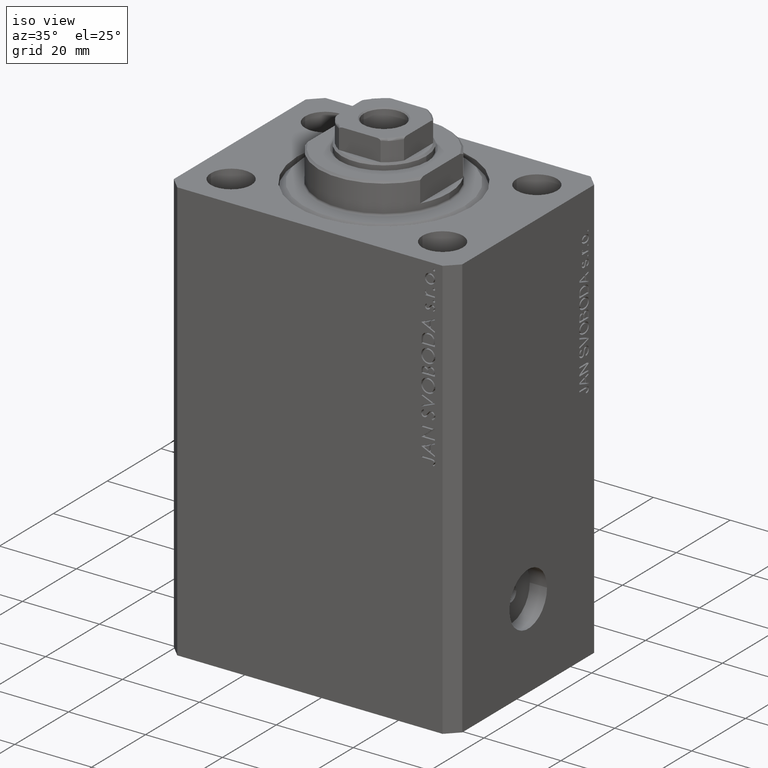
[diagram: clean part render]
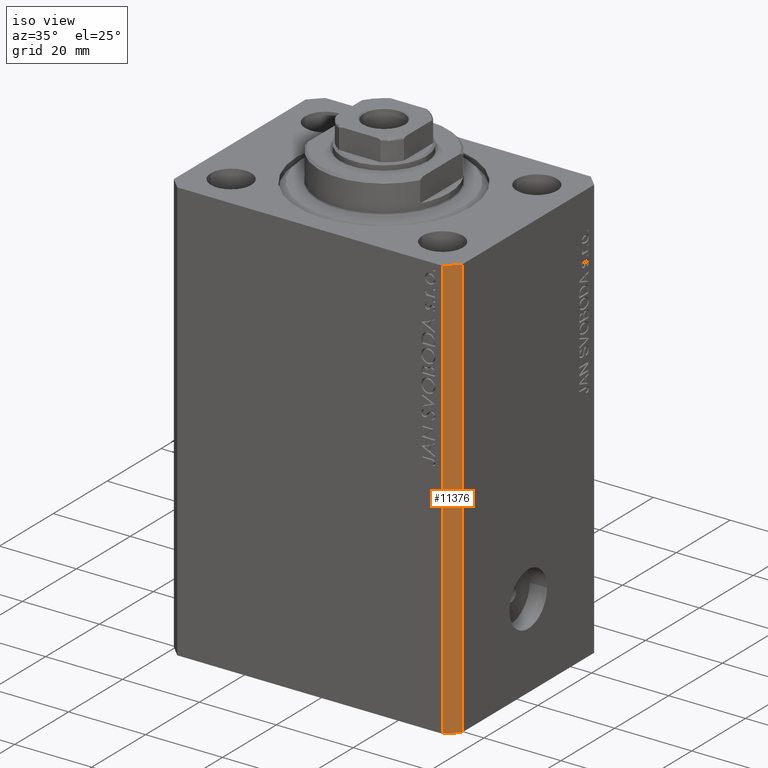
[diagram: same view with one face highlighted and labeled with its STEP entity id]
A machine part, iso view. The second image highlights one B-rep face of the part: STEP entity #11376.
In plain terms, the highlighted planar face has unit normal (0.7071, -0.7071, 0).
Its self-contained STEP definition (entity closure, byte-faithful):
#383 = ORIENTED_EDGE ( 'NONE', *, *, #29918, .T. ) ;
#1339 = LINE ( 'NONE', #21875, #21075 ) ;
#1454 = CARTESIAN_POINT ( 'NONE',  ( 34.49999999999999289, -27.49999999999999645, -110.0000000000000000 ) ) ;
#2877 = CARTESIAN_POINT ( 'NONE',  ( 37.49999999999999289, -24.50000000000000000, 0.000000000000000000 ) ) ;
#3054 = CARTESIAN_POINT ( 'NONE',  ( 34.49999999999999289, -27.49999999999999645, -110.0000000000000000 ) ) ;
#3861 = DIRECTION ( 'NONE',  ( 0.7071067811865474617, 0.7071067811865474617, 0.000000000000000000 ) ) ;
#4506 = CARTESIAN_POINT ( 'NONE',  ( 34.49999999999999289, -27.49999999999999645, 0.000000000000000000 ) ) ;
#4859 = DIRECTION ( 'NONE',  ( 0.7071067811865474617, 0.7071067811865474617, 0.000000000000000000 ) ) ;
#6782 = LINE ( 'NONE', #30911, #15377 ) ;
#7562 = CARTESIAN_POINT ( 'NONE',  ( 34.49999999999999289, -27.49999999999999645, 0.000000000000000000 ) ) ;
#10186 = ORIENTED_EDGE ( 'NONE', *, *, #32880, .T. ) ;
#11376 = ADVANCED_FACE ( 'NONE', ( #17167 ), #27550, .T. ) ;
#12015 = EDGE_LOOP ( 'NONE', ( #32089, #41801, #383, #10186 ) ) ;
#15377 = VECTOR ( 'NONE', #40864, 1000.000000000000000 ) ;
#15656 = DIRECTION ( 'NONE',  ( 0.000000000000000000, 0.000000000000000000, 1.000000000000000000 ) ) ;
#17167 = FACE_OUTER_BOUND ( 'NONE', #12015, .T. ) ;
#20564 = DIRECTION ( 'NONE',  ( 0.7071067811865475727, -0.7071067811865475727, 0.000000000000000000 ) ) ;
#21075 = VECTOR ( 'NONE', #3861, 1000.000000000000114 ) ;
#21875 = CARTESIAN_POINT ( 'NONE',  ( 34.49999999999999289, -27.49999999999999645, -110.0000000000000000 ) ) ;
#23425 = VERTEX_POINT ( 'NONE', #30872 ) ;
#24415 = VERTEX_POINT ( 'NONE', #3054 ) ;
#27550 = PLANE ( 'NONE',  #44410 ) ;
#27778 = EDGE_CURVE ( 'NONE', #24415, #29166, #35729, .T. ) ;
#29166 = VERTEX_POINT ( 'NONE', #4506 ) ;
#29918 = EDGE_CURVE ( 'NONE', #24415, #23425, #1339, .T. ) ;
#30283 = CARTESIAN_POINT ( 'NONE',  ( 34.49999999999999289, -27.49999999999999645, -110.0000000000000000 ) ) ;
#30872 = CARTESIAN_POINT ( 'NONE',  ( 37.49999999999999289, -24.50000000000000000, -110.0000000000000000 ) ) ;
#30911 = CARTESIAN_POINT ( 'NONE',  ( 37.49999999999999289, -24.50000000000000000, -110.0000000000000000 ) ) ;
#32089 = ORIENTED_EDGE ( 'NONE', *, *, #39507, .F. ) ;
#32880 = EDGE_CURVE ( 'NONE', #23425, #33978, #6782, .T. ) ;
#33978 = VERTEX_POINT ( 'NONE', #2877 ) ;
#35729 = LINE ( 'NONE', #1454, #41083 ) ;
#38463 = LINE ( 'NONE', #7562, #43565 ) ;
#39507 = EDGE_CURVE ( 'NONE', #29166, #33978, #38463, .T. ) ;
#40864 = DIRECTION ( 'NONE',  ( 0.000000000000000000, 0.000000000000000000, 1.000000000000000000 ) ) ;
#41083 = VECTOR ( 'NONE', #15656, 1000.000000000000000 ) ;
#41801 = ORIENTED_EDGE ( 'NONE', *, *, #27778, .F. ) ;
#43565 = VECTOR ( 'NONE', #4859, 1000.000000000000114 ) ;
#44045 = DIRECTION ( 'NONE',  ( 0.7071067811865474617, 0.7071067811865474617, 0.000000000000000000 ) ) ;
#44410 = AXIS2_PLACEMENT_3D ( 'NONE', #30283, #20564, #44045 ) ;